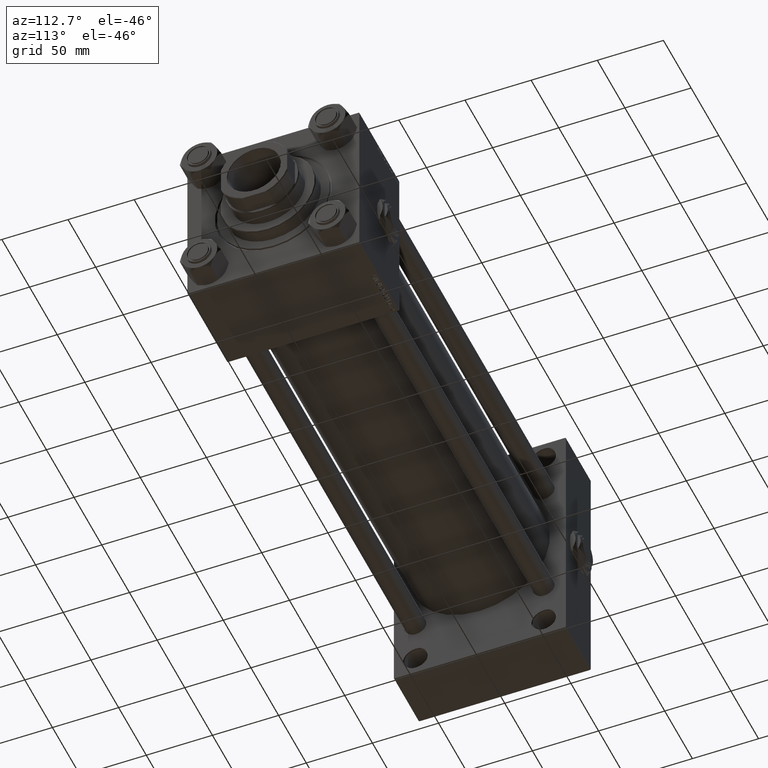
[diagram: clean part render]
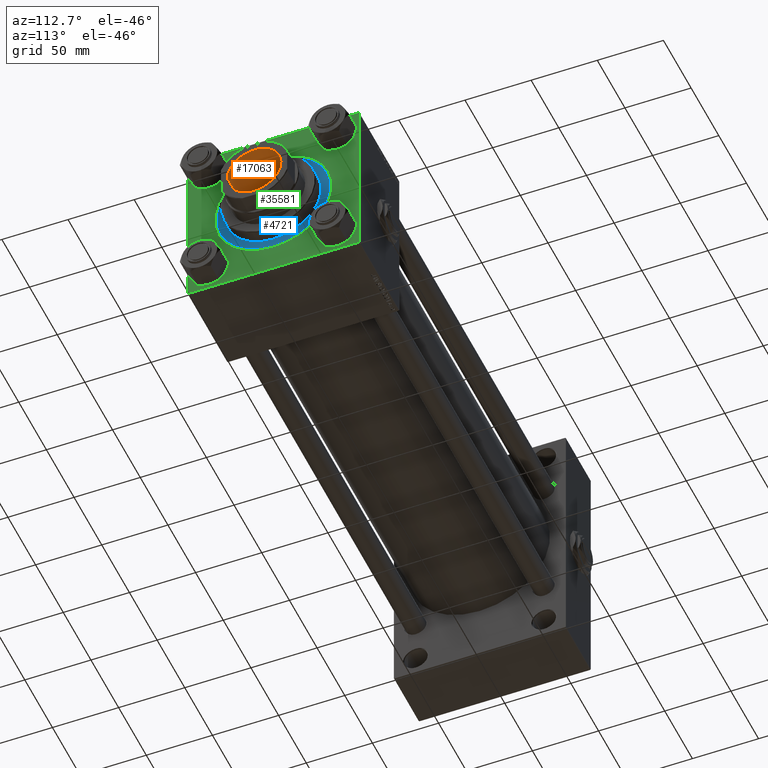
[diagram: same view with three faces highlighted in distinct colors, each labeled with its STEP entity id]
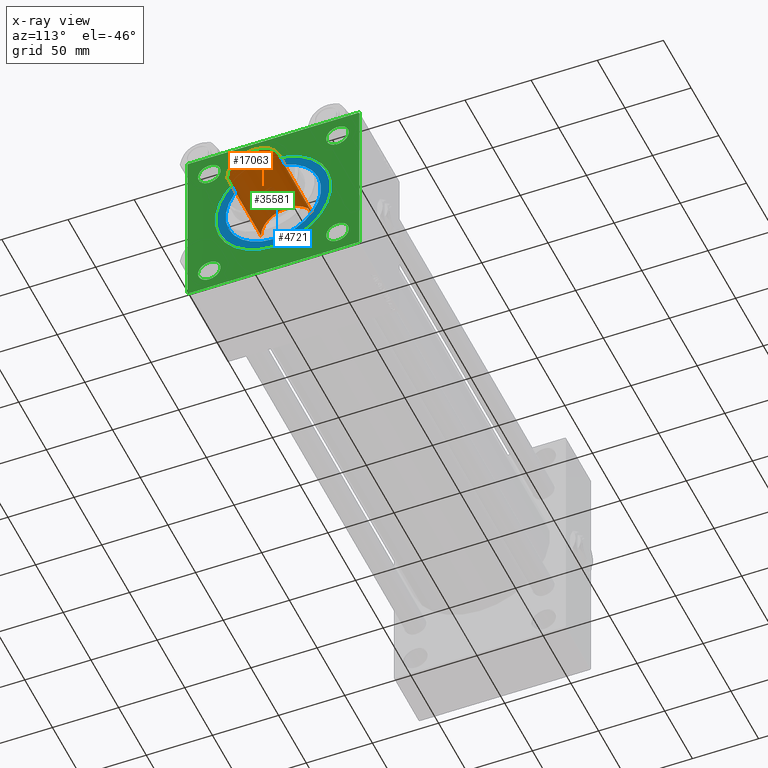
[diagram: x-ray of the same camera — body ghosted, the three highlighted faces saturated]
A machine part, auxiliary view with three faces highlighted in distinct colors.
The next image is the same camera in x-ray (body ghosted, the three faces saturated) — at least one of them is partly hidden behind the body in this view.
Their STEP definitions:

[orange] entity #17063 — the highlighted cylindrical surface (edge-blend (fillet) strip) has radius 20.25 mm, axis along (1, 0, 0).
#953 = ORIENTED_EDGE ( 'NONE', *, *, #45601, .F. ) ;
#2233 = DIRECTION ( 'NONE',  ( 1.000000000000000000, 0.000000000000000000, 0.000000000000000000 ) ) ;
#2703 = EDGE_CURVE ( 'NONE', #22973, #51308, #29699, .T. ) ;
#4482 = VECTOR ( 'NONE', #42722, 1000.000000000000000 ) ;
#6019 = CARTESIAN_POINT ( 'NONE',  ( -20.24999999999999289, 2.479909768273389511E-15, 408.0000000000000568 ) ) ;
#6210 = FACE_OUTER_BOUND ( 'NONE', #16440, .T. ) ;
#7032 = AXIS2_PLACEMENT_3D ( 'NONE', #32592, #40840, #52553 ) ;
#7626 = CARTESIAN_POINT ( 'NONE',  ( 0.000000000000000000, 0.000000000000000000, 407.6999999999998749 ) ) ;
#10196 = CYLINDRICAL_SURFACE ( 'NONE', #40915, 20.24999999999999289 ) ;
#11327 = DIRECTION ( 'NONE',  ( 1.000000000000000000, 0.000000000000000000, 0.000000000000000000 ) ) ;
#11805 = VECTOR ( 'NONE', #29019, 1000.000000000000000 ) ;
#12779 = CARTESIAN_POINT ( 'NONE',  ( 20.24999999999999289, 0.000000000000000000, 408.0000000000000568 ) ) ;
#15591 = DIRECTION ( 'NONE',  ( 0.000000000000000000, 0.000000000000000000, 1.000000000000000000 ) ) ;
#16440 = EDGE_LOOP ( 'NONE', ( #953, #47268, #27345, #17087 ) ) ;
#17063 = ADVANCED_FACE ( 'NONE', ( #6210 ), #10196, .F. ) ;
#17087 = ORIENTED_EDGE ( 'NONE', *, *, #38977, .F. ) ;
#18000 = CIRCLE ( 'NONE', #7032, 20.24999999999998934 ) ;
#22005 = CARTESIAN_POINT ( 'NONE',  ( -20.24999999999999289, 2.479909768273389511E-15, 407.6999999999998749 ) ) ;
#22423 = DIRECTION ( 'NONE',  ( -0.000000000000000000, -0.000000000000000000, 1.000000000000000000 ) ) ;
#22973 = VERTEX_POINT ( 'NONE', #44683 ) ;
#26418 = CARTESIAN_POINT ( 'NONE',  ( 0.000000000000000000, 0.000000000000000000, 408.0000000000000568 ) ) ;
#27345 = ORIENTED_EDGE ( 'NONE', *, *, #48865, .T. ) ;
#27748 = VERTEX_POINT ( 'NONE', #44138 ) ;
#29019 = DIRECTION ( 'NONE',  ( -0.000000000000000000, -0.000000000000000000, 1.000000000000000000 ) ) ;
#29699 = LINE ( 'NONE', #6019, #4482 ) ;
#32449 = AXIS2_PLACEMENT_3D ( 'NONE', #7626, #15591, #11327 ) ;
#32592 = CARTESIAN_POINT ( 'NONE',  ( 0.000000000000000000, 0.000000000000000000, 347.0000000000000568 ) ) ;
#38977 = EDGE_CURVE ( 'NONE', #27748, #40364, #49244, .T. ) ;
#40364 = VERTEX_POINT ( 'NONE', #44898 ) ;
#40840 = DIRECTION ( 'NONE',  ( -0.000000000000000000, -0.000000000000000000, 1.000000000000000000 ) ) ;
#40915 = AXIS2_PLACEMENT_3D ( 'NONE', #26418, #22423, #2233 ) ;
#42655 = CIRCLE ( 'NONE', #32449, 20.24999999999999289 ) ;
#42722 = DIRECTION ( 'NONE',  ( -0.000000000000000000, -0.000000000000000000, 1.000000000000000000 ) ) ;
#44138 = CARTESIAN_POINT ( 'NONE',  ( 20.24999999999998934, 0.000000000000000000, 347.0000000000000568 ) ) ;
#44683 = CARTESIAN_POINT ( 'NONE',  ( -20.24999999999998934, 2.479909768273389117E-15, 347.0000000000000568 ) ) ;
#44898 = CARTESIAN_POINT ( 'NONE',  ( 20.24999999999999289, 0.000000000000000000, 407.6999999999998749 ) ) ;
#45601 = EDGE_CURVE ( 'NONE', #22973, #27748, #18000, .T. ) ;
#47268 = ORIENTED_EDGE ( 'NONE', *, *, #2703, .T. ) ;
#48865 = EDGE_CURVE ( 'NONE', #51308, #40364, #42655, .T. ) ;
#49244 = LINE ( 'NONE', #12779, #11805 ) ;
#51308 = VERTEX_POINT ( 'NONE', #22005 ) ;
#52553 = DIRECTION ( 'NONE',  ( 1.000000000000000000, 0.000000000000000000, 0.000000000000000000 ) ) ;

[blue] entity #4721 — the highlighted planar face has unit normal (1, 0, 0).
#980 = EDGE_CURVE ( 'NONE', #37222, #30594, #52110, .T. ) ;
#2139 = CARTESIAN_POINT ( 'NONE',  ( -36.00000000000000000, 0.000000000000000000, 28.69999999999999929 ) ) ;
#2140 = EDGE_LOOP ( 'NONE', ( #21679, #38963 ) ) ;
#2964 = DIRECTION ( 'NONE',  ( 1.000000000000000000, 0.000000000000000000, -0.000000000000000000 ) ) ;
#4279 = CARTESIAN_POINT ( 'NONE',  ( 0.000000000000000000, 0.000000000000000000, 28.69999999999999929 ) ) ;
#4547 = DIRECTION ( 'NONE',  ( 1.000000000000000000, 0.000000000000000000, 0.000000000000000000 ) ) ;
#4721 = ADVANCED_FACE ( 'NONE', ( #39933, #16222 ), #11960, .T. ) ;
#4836 = VERTEX_POINT ( 'NONE', #20718 ) ;
#6243 = CIRCLE ( 'NONE', #47043, 42.75000000000000000 ) ;
#7217 = CARTESIAN_POINT ( 'NONE',  ( 0.000000000000000000, 0.000000000000000000, 28.69999999999999929 ) ) ;
#7994 = DIRECTION ( 'NONE',  ( 0.000000000000000000, 0.000000000000000000, 1.000000000000000000 ) ) ;
#8719 = DIRECTION ( 'NONE',  ( 1.000000000000000000, 0.000000000000000000, 0.000000000000000000 ) ) ;
#9539 = CARTESIAN_POINT ( 'NONE',  ( -42.75000000000000000, 0.000000000000000000, 28.69999999999999929 ) ) ;
#11960 = PLANE ( 'NONE',  #29197 ) ;
#14595 = CIRCLE ( 'NONE', #36656, 36.00000000000000000 ) ;
#15228 = CIRCLE ( 'NONE', #44963, 36.00000000000000000 ) ;
#15623 = AXIS2_PLACEMENT_3D ( 'NONE', #18144, #30404, #46629 ) ;
#16222 = FACE_OUTER_BOUND ( 'NONE', #2140, .T. ) ;
#18144 = CARTESIAN_POINT ( 'NONE',  ( 0.000000000000000000, 0.000000000000000000, 28.69999999999999929 ) ) ;
#20468 = DIRECTION ( 'NONE',  ( 0.000000000000000000, 0.000000000000000000, 1.000000000000000000 ) ) ;
#20718 = CARTESIAN_POINT ( 'NONE',  ( 36.00000000000000000, 4.408728476930470856E-15, 28.69999999999999929 ) ) ;
#21679 = ORIENTED_EDGE ( 'NONE', *, *, #51710, .T. ) ;
#25219 = CARTESIAN_POINT ( 'NONE',  ( 0.000000000000000000, 0.000000000000000000, 28.69999999999999929 ) ) ;
#27260 = EDGE_LOOP ( 'NONE', ( #34419, #32508 ) ) ;
#29197 = AXIS2_PLACEMENT_3D ( 'NONE', #7217, #7994, #2964 ) ;
#30404 = DIRECTION ( 'NONE',  ( 0.000000000000000000, 0.000000000000000000, 1.000000000000000000 ) ) ;
#30594 = VERTEX_POINT ( 'NONE', #9539 ) ;
#32508 = ORIENTED_EDGE ( 'NONE', *, *, #43645, .F. ) ;
#34419 = ORIENTED_EDGE ( 'NONE', *, *, #47215, .F. ) ;
#36656 = AXIS2_PLACEMENT_3D ( 'NONE', #4279, #20468, #48702 ) ;
#37222 = VERTEX_POINT ( 'NONE', #40668 ) ;
#38963 = ORIENTED_EDGE ( 'NONE', *, *, #980, .T. ) ;
#39933 = FACE_BOUND ( 'NONE', #27260, .T. ) ;
#40423 = DIRECTION ( 'NONE',  ( 0.000000000000000000, 0.000000000000000000, 1.000000000000000000 ) ) ;
#40668 = CARTESIAN_POINT ( 'NONE',  ( 42.75000000000000000, 5.235365066354935472E-15, 28.69999999999999929 ) ) ;
#41258 = DIRECTION ( 'NONE',  ( 0.000000000000000000, 0.000000000000000000, 1.000000000000000000 ) ) ;
#43543 = VERTEX_POINT ( 'NONE', #2139 ) ;
#43645 = EDGE_CURVE ( 'NONE', #4836, #43543, #15228, .T. ) ;
#44963 = AXIS2_PLACEMENT_3D ( 'NONE', #25219, #40423, #8719 ) ;
#45229 = CARTESIAN_POINT ( 'NONE',  ( 0.000000000000000000, 0.000000000000000000, 28.69999999999999929 ) ) ;
#46629 = DIRECTION ( 'NONE',  ( 1.000000000000000000, 0.000000000000000000, 0.000000000000000000 ) ) ;
#47043 = AXIS2_PLACEMENT_3D ( 'NONE', #45229, #41258, #4547 ) ;
#47215 = EDGE_CURVE ( 'NONE', #43543, #4836, #14595, .T. ) ;
#48702 = DIRECTION ( 'NONE',  ( 1.000000000000000000, 0.000000000000000000, 0.000000000000000000 ) ) ;
#51710 = EDGE_CURVE ( 'NONE', #30594, #37222, #6243, .T. ) ;
#52110 = CIRCLE ( 'NONE', #15623, 42.75000000000000000 ) ;

[green] entity #35581 — the highlighted planar face has unit normal (-1, 0, 0).
#215 = DIRECTION ( 'NONE',  ( -1.000000000000000000, 0.000000000000000000, -0.000000000000000000 ) ) ;
#317 = LINE ( 'NONE', #9319, #3752 ) ;
#433 = CIRCLE ( 'NONE', #4678, 44.24999999999995737 ) ;
#918 = VERTEX_POINT ( 'NONE', #2730 ) ;
#1367 = ORIENTED_EDGE ( 'NONE', *, *, #13352, .T. ) ;
#1389 = DIRECTION ( 'NONE',  ( 0.000000000000000000, 0.000000000000000000, 1.000000000000000000 ) ) ;
#1431 = VERTEX_POINT ( 'NONE', #48663 ) ;
#1733 = CARTESIAN_POINT ( 'NONE',  ( 418.0000000000000000, -48.44999999999999574, -48.45000000000003126 ) ) ;
#1920 = CIRCLE ( 'NONE', #13784, 8.500000000000063949 ) ;
#2011 = EDGE_CURVE ( 'NONE', #41014, #20505, #317, .T. ) ;
#2450 = VECTOR ( 'NONE', #23269, 1000.000000000000000 ) ;
#2730 = CARTESIAN_POINT ( 'NONE',  ( 418.0000000000000000, 65.00000000000002842, 64.49999999999995737 ) ) ;
#2812 = ORIENTED_EDGE ( 'NONE', *, *, #29262, .T. ) ;
#3214 = VECTOR ( 'NONE', #46370, 1000.000000000000114 ) ;
#3215 = VERTEX_POINT ( 'NONE', #41072 ) ;
#3752 = VECTOR ( 'NONE', #48991, 1000.000000000000000 ) ;
#4036 = EDGE_LOOP ( 'NONE', ( #42839, #4436 ) ) ;
#4224 = VERTEX_POINT ( 'NONE', #16604 ) ;
#4342 = CARTESIAN_POINT ( 'NONE',  ( 418.0000000000000000, 48.45000000000000995, -48.45000000000001705 ) ) ;
#4436 = ORIENTED_EDGE ( 'NONE', *, *, #29984, .T. ) ;
#4614 = CARTESIAN_POINT ( 'NONE',  ( 418.0000000000000000, 64.49999999999997158, 65.00000000000001421 ) ) ;
#4678 = AXIS2_PLACEMENT_3D ( 'NONE', #10989, #43723, #31748 ) ;
#4724 = DIRECTION ( 'NONE',  ( 0.000000000000000000, 0.000000000000000000, 1.000000000000000000 ) ) ;
#4873 = VERTEX_POINT ( 'NONE', #29769 ) ;
#5155 = CARTESIAN_POINT ( 'NONE',  ( 418.0000000000000000, 65.00000000000002842, -64.49999999999992895 ) ) ;
#5200 = VERTEX_POINT ( 'NONE', #7299 ) ;
#6121 = CIRCLE ( 'NONE', #16297, 8.500000000000063949 ) ;
#6223 = CARTESIAN_POINT ( 'NONE',  ( 418.0000000000000000, 48.45000000000000995, 48.45000000000001705 ) ) ;
#6300 = DIRECTION ( 'NONE',  ( -0.000000000000000000, -0.7071067811865573427, -0.7071067811865376918 ) ) ;
#6648 = DIRECTION ( 'NONE',  ( 0.000000000000000000, 0.000000000000000000, -1.000000000000000000 ) ) ;
#6781 = CARTESIAN_POINT ( 'NONE',  ( 418.0000000000000000, -48.44999999999999574, -56.95000000000008811 ) ) ;
#7013 = EDGE_CURVE ( 'NONE', #51751, #43318, #38331, .T. ) ;
#7299 = CARTESIAN_POINT ( 'NONE',  ( 418.0000000000000000, -48.44999999999999574, -39.94999999999996732 ) ) ;
#7814 = AXIS2_PLACEMENT_3D ( 'NONE', #27942, #44941, #12213 ) ;
#8012 = FACE_OUTER_BOUND ( 'NONE', #30756, .T. ) ;
#8527 = CARTESIAN_POINT ( 'NONE',  ( 418.0000000000000000, 64.49999999999997158, -64.99999999999998579 ) ) ;
#8812 = ORIENTED_EDGE ( 'NONE', *, *, #17991, .T. ) ;
#9319 = CARTESIAN_POINT ( 'NONE',  ( 418.0000000000000000, 65.00000000000002842, 65.00000000000001421 ) ) ;
#9950 = CIRCLE ( 'NONE', #46494, 8.500000000000063949 ) ;
#10283 = EDGE_CURVE ( 'NONE', #12788, #43654, #24306, .T. ) ;
#10812 = LINE ( 'NONE', #14269, #26250 ) ;
#10989 = CARTESIAN_POINT ( 'NONE',  ( 418.0000000000000000, 0.000000000000000000, 0.000000000000000000 ) ) ;
#11037 = ORIENTED_EDGE ( 'NONE', *, *, #31533, .T. ) ;
#11138 = LINE ( 'NONE', #27375, #22594 ) ;
#11216 = CARTESIAN_POINT ( 'NONE',  ( 418.0000000000000000, -64.49999999999991473, -65.00000000000001421 ) ) ;
#11316 = ORIENTED_EDGE ( 'NONE', *, *, #12040, .T. ) ;
#11409 = ORIENTED_EDGE ( 'NONE', *, *, #41940, .T. ) ;
#11426 = VECTOR ( 'NONE', #14121, 1000.000000000000000 ) ;
#11589 = CIRCLE ( 'NONE', #32814, 8.500000000000063949 ) ;
#11984 = EDGE_LOOP ( 'NONE', ( #26401, #50568 ) ) ;
#12040 = EDGE_CURVE ( 'NONE', #46775, #5200, #9950, .T. ) ;
#12080 = DIRECTION ( 'NONE',  ( -1.000000000000000000, 0.000000000000000000, -0.000000000000000000 ) ) ;
#12213 = DIRECTION ( 'NONE',  ( 0.000000000000000000, 0.000000000000000000, 1.000000000000000000 ) ) ;
#12555 = VERTEX_POINT ( 'NONE', #48912 ) ;
#12788 = VERTEX_POINT ( 'NONE', #46757 ) ;
#13352 = EDGE_CURVE ( 'NONE', #918, #41014, #17079, .T. ) ;
#13784 = AXIS2_PLACEMENT_3D ( 'NONE', #29050, #28804, #1389 ) ;
#14121 = DIRECTION ( 'NONE',  ( 0.000000000000000000, -1.000000000000000000, -2.135044278125300850E-16 ) ) ;
#14269 = CARTESIAN_POINT ( 'NONE',  ( 418.0000000000000000, -64.99999999999998579, 64.50000000000005684 ) ) ;
#14525 = EDGE_LOOP ( 'NONE', ( #46447, #17433 ) ) ;
#14891 = LINE ( 'NONE', #15418, #33495 ) ;
#15418 = CARTESIAN_POINT ( 'NONE',  ( 418.0000000000000000, 65.00000000000002842, 65.00000000000001421 ) ) ;
#16297 = AXIS2_PLACEMENT_3D ( 'NONE', #20402, #215, #4724 ) ;
#16604 = CARTESIAN_POINT ( 'NONE',  ( 418.0000000000000000, -64.99999999999998579, -64.49999999999997158 ) ) ;
#16853 = CARTESIAN_POINT ( 'NONE',  ( 418.0000000000000000, 48.45000000000000995, 48.45000000000001705 ) ) ;
#17079 = LINE ( 'NONE', #4614, #3214 ) ;
#17433 = ORIENTED_EDGE ( 'NONE', *, *, #19903, .T. ) ;
#17609 = CARTESIAN_POINT ( 'NONE',  ( 418.0000000000000000, 0.000000000000000000, 0.000000000000000000 ) ) ;
#17991 = EDGE_CURVE ( 'NONE', #5200, #46775, #35876, .T. ) ;
#18103 = CARTESIAN_POINT ( 'NONE',  ( 418.0000000000000000, 65.00000000000002842, -64.99999999999998579 ) ) ;
#18180 = VERTEX_POINT ( 'NONE', #29758 ) ;
#19529 = CARTESIAN_POINT ( 'NONE',  ( 418.0000000000000000, -64.49999999999991473, -65.00000000000001421 ) ) ;
#19903 = EDGE_CURVE ( 'NONE', #34488, #12555, #1920, .T. ) ;
#20402 = CARTESIAN_POINT ( 'NONE',  ( 418.0000000000000000, 48.45000000000000995, -48.45000000000001705 ) ) ;
#20505 = VERTEX_POINT ( 'NONE', #32635 ) ;
#20537 = DIRECTION ( 'NONE',  ( -1.000000000000000000, 0.000000000000000000, -0.000000000000000000 ) ) ;
#21326 = VERTEX_POINT ( 'NONE', #27271 ) ;
#22323 = ORIENTED_EDGE ( 'NONE', *, *, #23452, .F. ) ;
#22594 = VECTOR ( 'NONE', #6648, 1000.000000000000000 ) ;
#23269 = DIRECTION ( 'NONE',  ( 0.000000000000000000, 0.7071067811865672237, -0.7071067811865279218 ) ) ;
#23452 = EDGE_CURVE ( 'NONE', #918, #24963, #14891, .T. ) ;
#23599 = AXIS2_PLACEMENT_3D ( 'NONE', #35947, #24232, #27970 ) ;
#24232 = DIRECTION ( 'NONE',  ( -1.000000000000000000, 0.000000000000000000, -0.000000000000000000 ) ) ;
#24306 = CIRCLE ( 'NONE', #31126, 44.24999999999995737 ) ;
#24499 = AXIS2_PLACEMENT_3D ( 'NONE', #4342, #20537, #41306 ) ;
#24696 = CARTESIAN_POINT ( 'NONE',  ( 418.0000000000000000, 5.419062086227032672E-15, 44.24999999999995737 ) ) ;
#24843 = DIRECTION ( 'NONE',  ( 0.000000000000000000, 0.000000000000000000, 1.000000000000000000 ) ) ;
#24963 = VERTEX_POINT ( 'NONE', #5155 ) ;
#25658 = DIRECTION ( 'NONE',  ( 0.000000000000000000, 0.000000000000000000, 1.000000000000000000 ) ) ;
#25910 = DIRECTION ( 'NONE',  ( -1.000000000000000000, 0.000000000000000000, -0.000000000000000000 ) ) ;
#26130 = DIRECTION ( 'NONE',  ( -1.000000000000000000, 0.000000000000000000, -0.000000000000000000 ) ) ;
#26250 = VECTOR ( 'NONE', #6300, 1000.000000000000114 ) ;
#26401 = ORIENTED_EDGE ( 'NONE', *, *, #41655, .T. ) ;
#27271 = CARTESIAN_POINT ( 'NONE',  ( 418.0000000000000000, -64.99999999999998579, 64.50000000000005684 ) ) ;
#27375 = CARTESIAN_POINT ( 'NONE',  ( 418.0000000000000000, -64.99999999999998579, 65.00000000000000000 ) ) ;
#27942 = CARTESIAN_POINT ( 'NONE',  ( 418.0000000000000000, -48.44999999999999574, -48.45000000000003126 ) ) ;
#27970 = DIRECTION ( 'NONE',  ( -0.000000000000000000, 0.000000000000000000, 1.000000000000000000 ) ) ;
#28444 = ORIENTED_EDGE ( 'NONE', *, *, #7013, .F. ) ;
#28755 = FACE_BOUND ( 'NONE', #32481, .T. ) ;
#28804 = DIRECTION ( 'NONE',  ( -1.000000000000000000, 0.000000000000000000, -0.000000000000000000 ) ) ;
#29049 = EDGE_CURVE ( 'NONE', #18180, #3215, #34417, .T. ) ;
#29050 = CARTESIAN_POINT ( 'NONE',  ( 418.0000000000000000, -48.44999999999999574, 48.45000000000003126 ) ) ;
#29262 = EDGE_CURVE ( 'NONE', #43654, #12788, #433, .T. ) ;
#29530 = DIRECTION ( 'NONE',  ( -0.000000000000000000, 0.7071067811865474617, 0.7071067811865474617 ) ) ;
#29758 = CARTESIAN_POINT ( 'NONE',  ( 418.0000000000000000, 48.45000000000000995, 39.95000000000011653 ) ) ;
#29769 = CARTESIAN_POINT ( 'NONE',  ( 418.0000000000000000, 48.45000000000000995, -56.95000000000007390 ) ) ;
#29984 = EDGE_CURVE ( 'NONE', #3215, #18180, #32743, .T. ) ;
#30481 = ORIENTED_EDGE ( 'NONE', *, *, #37752, .T. ) ;
#30756 = EDGE_LOOP ( 'NONE', ( #11037, #30481, #28444, #11409, #22323, #1367, #32506, #33871 ) ) ;
#31126 = AXIS2_PLACEMENT_3D ( 'NONE', #17609, #26130, #41822 ) ;
#31533 = EDGE_CURVE ( 'NONE', #21326, #4224, #11138, .T. ) ;
#31748 = DIRECTION ( 'NONE',  ( 0.000000000000000000, 0.000000000000000000, 1.000000000000000000 ) ) ;
#32027 = EDGE_CURVE ( 'NONE', #12555, #34488, #11589, .T. ) ;
#32481 = EDGE_LOOP ( 'NONE', ( #11316, #8812 ) ) ;
#32506 = ORIENTED_EDGE ( 'NONE', *, *, #2011, .T. ) ;
#32635 = CARTESIAN_POINT ( 'NONE',  ( 418.0000000000000000, -64.50000000000002842, 65.00000000000000000 ) ) ;
#32743 = CIRCLE ( 'NONE', #48075, 8.499999999999896971 ) ;
#32814 = AXIS2_PLACEMENT_3D ( 'NONE', #37261, #45498, #41518 ) ;
#33122 = DIRECTION ( 'NONE',  ( -1.000000000000000000, 0.000000000000000000, -0.000000000000000000 ) ) ;
#33495 = VECTOR ( 'NONE', #35652, 1000.000000000000000 ) ;
#33871 = ORIENTED_EDGE ( 'NONE', *, *, #42141, .T. ) ;
#34417 = CIRCLE ( 'NONE', #47150, 8.499999999999896971 ) ;
#34488 = VERTEX_POINT ( 'NONE', #46609 ) ;
#34750 = EDGE_LOOP ( 'NONE', ( #50424, #2812 ) ) ;
#35581 = ADVANCED_FACE ( 'NONE', ( #28755, #44450, #40973, #36981, #48967, #8012 ), #36717, .F. ) ;
#35652 = DIRECTION ( 'NONE',  ( 0.000000000000000000, 0.000000000000000000, -1.000000000000000000 ) ) ;
#35876 = CIRCLE ( 'NONE', #7814, 8.500000000000063949 ) ;
#35947 = CARTESIAN_POINT ( 'NONE',  ( 418.0000000000000000, 0.000000000000000000, 0.000000000000000000 ) ) ;
#36717 = PLANE ( 'NONE',  #23599 ) ;
#36981 = FACE_BOUND ( 'NONE', #14525, .T. ) ;
#37261 = CARTESIAN_POINT ( 'NONE',  ( 418.0000000000000000, -48.44999999999999574, 48.45000000000003126 ) ) ;
#37752 = EDGE_CURVE ( 'NONE', #4224, #43318, #40021, .T. ) ;
#38331 = LINE ( 'NONE', #18103, #11426 ) ;
#40021 = LINE ( 'NONE', #19529, #2450 ) ;
#40474 = CARTESIAN_POINT ( 'NONE',  ( 418.0000000000000000, 65.00000000000002842, -64.49999999999992895 ) ) ;
#40973 = FACE_BOUND ( 'NONE', #4036, .T. ) ;
#41014 = VERTEX_POINT ( 'NONE', #46614 ) ;
#41072 = CARTESIAN_POINT ( 'NONE',  ( 418.0000000000000000, 48.45000000000000995, 56.94999999999991047 ) ) ;
#41306 = DIRECTION ( 'NONE',  ( 0.000000000000000000, 0.000000000000000000, 1.000000000000000000 ) ) ;
#41518 = DIRECTION ( 'NONE',  ( 0.000000000000000000, 0.000000000000000000, 1.000000000000000000 ) ) ;
#41538 = VECTOR ( 'NONE', #29530, 1000.000000000000114 ) ;
#41655 = EDGE_CURVE ( 'NONE', #4873, #1431, #43233, .T. ) ;
#41822 = DIRECTION ( 'NONE',  ( 0.000000000000000000, 0.000000000000000000, 1.000000000000000000 ) ) ;
#41940 = EDGE_CURVE ( 'NONE', #51751, #24963, #49225, .T. ) ;
#42141 = EDGE_CURVE ( 'NONE', #20505, #21326, #10812, .T. ) ;
#42839 = ORIENTED_EDGE ( 'NONE', *, *, #29049, .T. ) ;
#42940 = DIRECTION ( 'NONE',  ( 0.000000000000000000, 0.000000000000000000, 1.000000000000000000 ) ) ;
#43233 = CIRCLE ( 'NONE', #24499, 8.500000000000063949 ) ;
#43318 = VERTEX_POINT ( 'NONE', #11216 ) ;
#43654 = VERTEX_POINT ( 'NONE', #24696 ) ;
#43723 = DIRECTION ( 'NONE',  ( -1.000000000000000000, 0.000000000000000000, -0.000000000000000000 ) ) ;
#44450 = FACE_BOUND ( 'NONE', #11984, .T. ) ;
#44941 = DIRECTION ( 'NONE',  ( -1.000000000000000000, 0.000000000000000000, -0.000000000000000000 ) ) ;
#45498 = DIRECTION ( 'NONE',  ( -1.000000000000000000, 0.000000000000000000, -0.000000000000000000 ) ) ;
#46370 = DIRECTION ( 'NONE',  ( 0.000000000000000000, -0.7071067811865474617, 0.7071067811865474617 ) ) ;
#46447 = ORIENTED_EDGE ( 'NONE', *, *, #32027, .T. ) ;
#46494 = AXIS2_PLACEMENT_3D ( 'NONE', #1733, #33122, #25658 ) ;
#46609 = CARTESIAN_POINT ( 'NONE',  ( 418.0000000000000000, -48.44999999999999574, 56.95000000000008811 ) ) ;
#46614 = CARTESIAN_POINT ( 'NONE',  ( 418.0000000000000000, 64.49999999999997158, 65.00000000000001421 ) ) ;
#46757 = CARTESIAN_POINT ( 'NONE',  ( 418.0000000000000000, 0.000000000000000000, -44.24999999999995737 ) ) ;
#46775 = VERTEX_POINT ( 'NONE', #6781 ) ;
#47150 = AXIS2_PLACEMENT_3D ( 'NONE', #16853, #12080, #24843 ) ;
#48075 = AXIS2_PLACEMENT_3D ( 'NONE', #6223, #25910, #42940 ) ;
#48663 = CARTESIAN_POINT ( 'NONE',  ( 418.0000000000000000, 48.45000000000000995, -39.94999999999995310 ) ) ;
#48727 = EDGE_CURVE ( 'NONE', #1431, #4873, #6121, .T. ) ;
#48912 = CARTESIAN_POINT ( 'NONE',  ( 418.0000000000000000, -48.44999999999999574, 39.94999999999996732 ) ) ;
#48967 = FACE_BOUND ( 'NONE', #34750, .T. ) ;
#48991 = DIRECTION ( 'NONE',  ( 0.000000000000000000, -1.000000000000000000, -1.067522139062650425E-16 ) ) ;
#49225 = LINE ( 'NONE', #40474, #41538 ) ;
#50424 = ORIENTED_EDGE ( 'NONE', *, *, #10283, .T. ) ;
#50568 = ORIENTED_EDGE ( 'NONE', *, *, #48727, .T. ) ;
#51751 = VERTEX_POINT ( 'NONE', #8527 ) ;